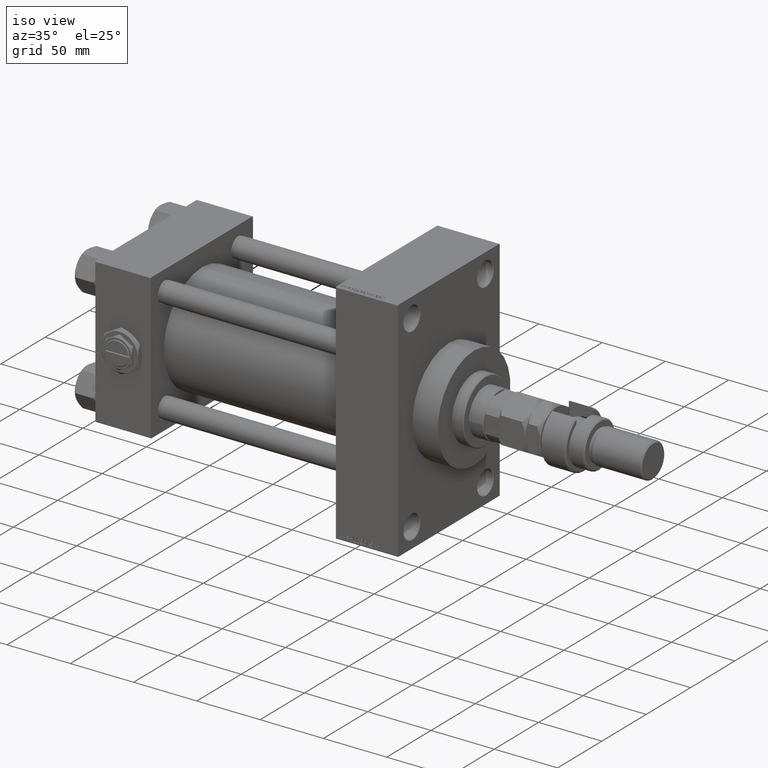
[diagram: clean part render]
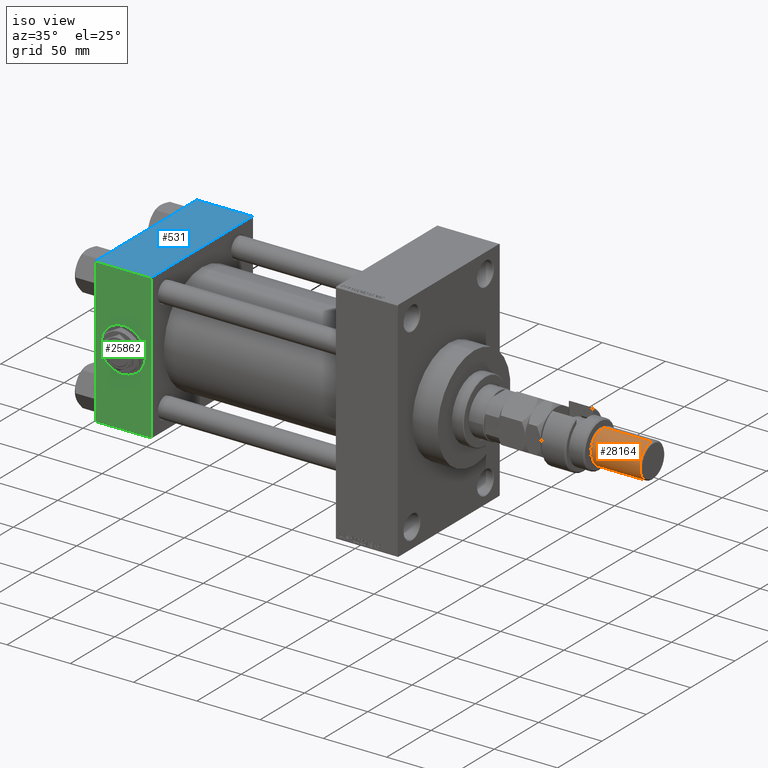
[diagram: same view with three faces highlighted in distinct colors, each labeled with its STEP entity id]
A machine part, iso view with three faces highlighted in distinct colors.
Their STEP definitions:

[orange] entity #28164 — the highlighted cylindrical surface (edge-blend (fillet) strip) has radius 13.5 mm, axis along (-1, -0, 0).
#1215 = DIRECTION ( 'NONE',  ( -0.000000000000000000, -0.000000000000000000, -1.000000000000000000 ) ) ;
#1297 = EDGE_CURVE ( 'NONE', #45889, #28731, #33524, .T. ) ;
#1731 = AXIS2_PLACEMENT_3D ( 'NONE', #11592, #34645, #14770 ) ;
#2693 = CARTESIAN_POINT ( 'NONE',  ( 0.000000000000000000, 0.000000000000000000, 74.00000000000001421 ) ) ;
#4096 = EDGE_LOOP ( 'NONE', ( #48469, #6667, #4788, #14476 ) ) ;
#4788 = ORIENTED_EDGE ( 'NONE', *, *, #1297, .T. ) ;
#5332 = AXIS2_PLACEMENT_3D ( 'NONE', #2693, #18572, #34733 ) ;
#5615 = FACE_OUTER_BOUND ( 'NONE', #4096, .T. ) ;
#5627 = CARTESIAN_POINT ( 'NONE',  ( -13.50000000000000000, 0.000000000000000000, 73.00000000000001421 ) ) ;
#6667 = ORIENTED_EDGE ( 'NONE', *, *, #18934, .T. ) ;
#7343 = AXIS2_PLACEMENT_3D ( 'NONE', #31506, #15617, #30967 ) ;
#10679 = EDGE_CURVE ( 'NONE', #28731, #31037, #43674, .T. ) ;
#11592 = CARTESIAN_POINT ( 'NONE',  ( 0.000000000000000000, 0.000000000000000000, 73.00000000000001421 ) ) ;
#11844 = VECTOR ( 'NONE', #45870, 1000.000000000000000 ) ;
#13601 = LINE ( 'NONE', #29757, #11844 ) ;
#14255 = VECTOR ( 'NONE', #1215, 1000.000000000000000 ) ;
#14476 = ORIENTED_EDGE ( 'NONE', *, *, #10679, .T. ) ;
#14770 = DIRECTION ( 'NONE',  ( 1.000000000000000000, 0.000000000000000000, 0.000000000000000000 ) ) ;
#15617 = DIRECTION ( 'NONE',  ( -0.000000000000000000, -0.000000000000000000, 1.000000000000000000 ) ) ;
#18272 = EDGE_CURVE ( 'NONE', #48214, #31037, #13601, .T. ) ;
#18572 = DIRECTION ( 'NONE',  ( -0.000000000000000000, -0.000000000000000000, -1.000000000000000000 ) ) ;
#18934 = EDGE_CURVE ( 'NONE', #48214, #45889, #38088, .T. ) ;
#25626 = CARTESIAN_POINT ( 'NONE',  ( -13.50000000000000000, 0.000000000000000000, 34.99999999999999289 ) ) ;
#26811 = CARTESIAN_POINT ( 'NONE',  ( -13.50000000000000000, 0.000000000000000000, 74.00000000000001421 ) ) ;
#28164 = ADVANCED_FACE ( 'NONE', ( #5615 ), #47124, .T. ) ;
#28731 = VERTEX_POINT ( 'NONE', #25626 ) ;
#29757 = CARTESIAN_POINT ( 'NONE',  ( 13.50000000000000000, 1.653273178848926867E-15, 74.00000000000001421 ) ) ;
#30967 = DIRECTION ( 'NONE',  ( 1.000000000000000000, 0.000000000000000000, 0.000000000000000000 ) ) ;
#31037 = VERTEX_POINT ( 'NONE', #33081 ) ;
#31506 = CARTESIAN_POINT ( 'NONE',  ( 0.000000000000000000, 0.000000000000000000, 34.99999999999999289 ) ) ;
#33081 = CARTESIAN_POINT ( 'NONE',  ( 13.50000000000000000, 1.653273178848926867E-15, 34.99999999999999289 ) ) ;
#33524 = LINE ( 'NONE', #26811, #14255 ) ;
#34645 = DIRECTION ( 'NONE',  ( 0.000000000000000000, 0.000000000000000000, -1.000000000000000000 ) ) ;
#34733 = DIRECTION ( 'NONE',  ( -1.000000000000000000, 0.000000000000000000, 0.000000000000000000 ) ) ;
#35030 = CARTESIAN_POINT ( 'NONE',  ( 13.50000000000000000, 1.653273178848926867E-15, 73.00000000000001421 ) ) ;
#38088 = CIRCLE ( 'NONE', #1731, 13.50000000000000000 ) ;
#43674 = CIRCLE ( 'NONE', #7343, 13.50000000000000000 ) ;
#45870 = DIRECTION ( 'NONE',  ( -0.000000000000000000, -0.000000000000000000, -1.000000000000000000 ) ) ;
#45889 = VERTEX_POINT ( 'NONE', #5627 ) ;
#47124 = CYLINDRICAL_SURFACE ( 'NONE', #5332, 13.50000000000000000 ) ;
#48214 = VERTEX_POINT ( 'NONE', #35030 ) ;
#48469 = ORIENTED_EDGE ( 'NONE', *, *, #18272, .F. ) ;

[blue] entity #531 — the highlighted planar face has unit normal (0, 0, -1).
#304 = VERTEX_POINT ( 'NONE', #37298 ) ;
#531 = ADVANCED_FACE ( 'NONE', ( #46439 ), #2785, .F. ) ;
#2378 = AXIS2_PLACEMENT_3D ( 'NONE', #50417, #30595, #42746 ) ;
#2785 = PLANE ( 'NONE',  #2378 ) ;
#3341 = CARTESIAN_POINT ( 'NONE',  ( 0.000000000000000000, -57.00000000000003553, 57.49999999999999289 ) ) ;
#3404 = EDGE_CURVE ( 'NONE', #304, #18640, #34578, .T. ) ;
#4099 = CARTESIAN_POINT ( 'NONE',  ( 44.00000000000000000, -57.00000000000003553, 57.49999999999999289 ) ) ;
#6850 = VECTOR ( 'NONE', #8230, 1000.000000000000000 ) ;
#7326 = ORIENTED_EDGE ( 'NONE', *, *, #3404, .T. ) ;
#8230 = DIRECTION ( 'NONE',  ( 0.000000000000000000, -1.000000000000000000, -1.206764157201257045E-16 ) ) ;
#8497 = LINE ( 'NONE', #20914, #6850 ) ;
#9153 = DIRECTION ( 'NONE',  ( 1.000000000000000000, 0.000000000000000000, 0.000000000000000000 ) ) ;
#12866 = LINE ( 'NONE', #36948, #23814 ) ;
#14783 = ORIENTED_EDGE ( 'NONE', *, *, #51668, .T. ) ;
#16702 = ORIENTED_EDGE ( 'NONE', *, *, #16790, .T. ) ;
#16790 = EDGE_CURVE ( 'NONE', #18640, #34391, #32997, .T. ) ;
#18640 = VERTEX_POINT ( 'NONE', #21150 ) ;
#20914 = CARTESIAN_POINT ( 'NONE',  ( 44.00000000000000000, 57.49999999999999289, 57.50000000000000711 ) ) ;
#20916 = ORIENTED_EDGE ( 'NONE', *, *, #50935, .F. ) ;
#21150 = CARTESIAN_POINT ( 'NONE',  ( 0.000000000000000000, 57.00000000000000711, 57.50000000000000711 ) ) ;
#23814 = VECTOR ( 'NONE', #9153, 1000.000000000000000 ) ;
#24113 = VERTEX_POINT ( 'NONE', #4099 ) ;
#29277 = CARTESIAN_POINT ( 'NONE',  ( 0.000000000000000000, 57.49999999999999289, 57.50000000000000711 ) ) ;
#29311 = CARTESIAN_POINT ( 'NONE',  ( 0.000000000000000000, 57.00000000000000711, 57.50000000000000711 ) ) ;
#30595 = DIRECTION ( 'NONE',  ( 0.000000000000000000, 1.206764157201257045E-16, -1.000000000000000000 ) ) ;
#31811 = EDGE_LOOP ( 'NONE', ( #16702, #14783, #20916, #7326 ) ) ;
#32997 = LINE ( 'NONE', #29277, #46451 ) ;
#34391 = VERTEX_POINT ( 'NONE', #3341 ) ;
#34578 = LINE ( 'NONE', #29311, #39686 ) ;
#36948 = CARTESIAN_POINT ( 'NONE',  ( 44.00000000000000000, -57.00000000000003553, 57.49999999999999289 ) ) ;
#36956 = DIRECTION ( 'NONE',  ( 0.000000000000000000, -1.000000000000000000, -1.206764157201257045E-16 ) ) ;
#37298 = CARTESIAN_POINT ( 'NONE',  ( 44.00000000000000000, 57.00000000000000711, 57.50000000000000711 ) ) ;
#39686 = VECTOR ( 'NONE', #45418, 1000.000000000000000 ) ;
#42746 = DIRECTION ( 'NONE',  ( 0.000000000000000000, 1.000000000000000000, 1.206764157201257045E-16 ) ) ;
#45418 = DIRECTION ( 'NONE',  ( -1.000000000000000000, 0.000000000000000000, 0.000000000000000000 ) ) ;
#46439 = FACE_OUTER_BOUND ( 'NONE', #31811, .T. ) ;
#46451 = VECTOR ( 'NONE', #36956, 1000.000000000000000 ) ;
#50417 = CARTESIAN_POINT ( 'NONE',  ( 44.00000000000000000, 57.49999999999999289, 57.50000000000000711 ) ) ;
#50935 = EDGE_CURVE ( 'NONE', #304, #24113, #8497, .T. ) ;
#51668 = EDGE_CURVE ( 'NONE', #34391, #24113, #12866, .T. ) ;

[green] entity #25862 — the highlighted planar face has unit normal (0, 1, 0).
#835 = VECTOR ( 'NONE', #3403, 1000.000000000000000 ) ;
#1198 = ORIENTED_EDGE ( 'NONE', *, *, #4481, .T. ) ;
#1648 = CARTESIAN_POINT ( 'NONE',  ( 22.00000000000000000, -57.50000000000000711, 0.000000000000000000 ) ) ;
#2674 = EDGE_CURVE ( 'NONE', #44463, #10252, #27089, .T. ) ;
#2719 = AXIS2_PLACEMENT_3D ( 'NONE', #25843, #14187, #13158 ) ;
#3264 = DIRECTION ( 'NONE',  ( 0.000000000000000000, 0.000000000000000000, -1.000000000000000000 ) ) ;
#3403 = DIRECTION ( 'NONE',  ( 1.000000000000000000, 0.000000000000000000, 0.000000000000000000 ) ) ;
#4481 = EDGE_CURVE ( 'NONE', #10252, #22533, #51278, .T. ) ;
#5468 = FACE_OUTER_BOUND ( 'NONE', #50340, .T. ) ;
#6463 = LINE ( 'NONE', #7252, #35613 ) ;
#6977 = CARTESIAN_POINT ( 'NONE',  ( 0.000000000000000000, -57.50000000000000711, 57.49999999999999289 ) ) ;
#6994 = DIRECTION ( 'NONE',  ( -1.000000000000000000, 0.000000000000000000, 0.000000000000000000 ) ) ;
#7252 = CARTESIAN_POINT ( 'NONE',  ( 44.00000000000000000, -57.50000000000000711, 57.00000000000000711 ) ) ;
#7299 = CARTESIAN_POINT ( 'NONE',  ( 44.00000000000000000, -57.50000000000000711, -57.00000000000000711 ) ) ;
#8580 = DIRECTION ( 'NONE',  ( 0.000000000000000000, -1.000000000000000000, -8.673617379884036705E-17 ) ) ;
#9842 = CARTESIAN_POINT ( 'NONE',  ( 44.00000000000000000, -57.50000000000000711, 57.49999999999999289 ) ) ;
#10252 = VERTEX_POINT ( 'NONE', #24465 ) ;
#11948 = ORIENTED_EDGE ( 'NONE', *, *, #29711, .F. ) ;
#13158 = DIRECTION ( 'NONE',  ( 0.000000000000000000, -0.000000000000000000, 1.000000000000000000 ) ) ;
#13827 = ORIENTED_EDGE ( 'NONE', *, *, #50378, .T. ) ;
#14187 = DIRECTION ( 'NONE',  ( -0.000000000000000000, 1.000000000000000000, 0.000000000000000000 ) ) ;
#15221 = EDGE_CURVE ( 'NONE', #18138, #22533, #40653, .T. ) ;
#17041 = DIRECTION ( 'NONE',  ( 0.000000000000000000, 0.000000000000000000, -1.000000000000000000 ) ) ;
#17137 = PLANE ( 'NONE',  #2719 ) ;
#18138 = VERTEX_POINT ( 'NONE', #45340 ) ;
#20221 = ORIENTED_EDGE ( 'NONE', *, *, #35560, .F. ) ;
#21545 = ORIENTED_EDGE ( 'NONE', *, *, #2674, .T. ) ;
#22533 = VERTEX_POINT ( 'NONE', #7299 ) ;
#24465 = CARTESIAN_POINT ( 'NONE',  ( 0.000000000000000000, -57.50000000000000711, -57.00000000000000711 ) ) ;
#25843 = CARTESIAN_POINT ( 'NONE',  ( 44.00000000000000000, -57.50000000000000711, 57.49999999999999289 ) ) ;
#25862 = ADVANCED_FACE ( 'NONE', ( #45939, #5468 ), #17137, .F. ) ;
#27089 = LINE ( 'NONE', #6977, #42238 ) ;
#28963 = CARTESIAN_POINT ( 'NONE',  ( 22.00000000000000000, -57.50000000000000711, 0.000000000000000000 ) ) ;
#29532 = CARTESIAN_POINT ( 'NONE',  ( 0.000000000000000000, -57.50000000000000711, 57.00000000000000711 ) ) ;
#29711 = EDGE_CURVE ( 'NONE', #38675, #32415, #45952, .T. ) ;
#29726 = DIRECTION ( 'NONE',  ( 0.000000000000000000, 0.000000000000000000, -1.000000000000000000 ) ) ;
#30005 = CARTESIAN_POINT ( 'NONE',  ( 22.00000000000000355, -57.50000000000000711, 17.50000000000000000 ) ) ;
#32415 = VERTEX_POINT ( 'NONE', #49838 ) ;
#35560 = EDGE_CURVE ( 'NONE', #32415, #38675, #51986, .T. ) ;
#35613 = VECTOR ( 'NONE', #6994, 1000.000000000000000 ) ;
#36425 = DIRECTION ( 'NONE',  ( 0.000000000000000000, 0.000000000000000000, -1.000000000000000000 ) ) ;
#37657 = DIRECTION ( 'NONE',  ( 0.000000000000000000, -1.000000000000000000, -8.673617379884036705E-17 ) ) ;
#38675 = VERTEX_POINT ( 'NONE', #30005 ) ;
#39668 = CARTESIAN_POINT ( 'NONE',  ( 44.00000000000000000, -57.50000000000000711, -57.00000000000000711 ) ) ;
#40653 = LINE ( 'NONE', #9842, #45508 ) ;
#42238 = VECTOR ( 'NONE', #3264, 1000.000000000000000 ) ;
#43524 = AXIS2_PLACEMENT_3D ( 'NONE', #1648, #37657, #29726 ) ;
#44463 = VERTEX_POINT ( 'NONE', #29532 ) ;
#45340 = CARTESIAN_POINT ( 'NONE',  ( 44.00000000000000000, -57.50000000000000711, 57.00000000000000711 ) ) ;
#45508 = VECTOR ( 'NONE', #36425, 1000.000000000000000 ) ;
#45939 = FACE_BOUND ( 'NONE', #50787, .T. ) ;
#45952 = CIRCLE ( 'NONE', #51895, 17.50000000000000000 ) ;
#49838 = CARTESIAN_POINT ( 'NONE',  ( 22.00000000000000000, -57.50000000000000711, -17.50000000000000000 ) ) ;
#50340 = EDGE_LOOP ( 'NONE', ( #21545, #1198, #51955, #13827 ) ) ;
#50378 = EDGE_CURVE ( 'NONE', #18138, #44463, #6463, .T. ) ;
#50787 = EDGE_LOOP ( 'NONE', ( #20221, #11948 ) ) ;
#51278 = LINE ( 'NONE', #39668, #835 ) ;
#51895 = AXIS2_PLACEMENT_3D ( 'NONE', #28963, #8580, #17041 ) ;
#51955 = ORIENTED_EDGE ( 'NONE', *, *, #15221, .F. ) ;
#51986 = CIRCLE ( 'NONE', #43524, 17.50000000000000000 ) ;